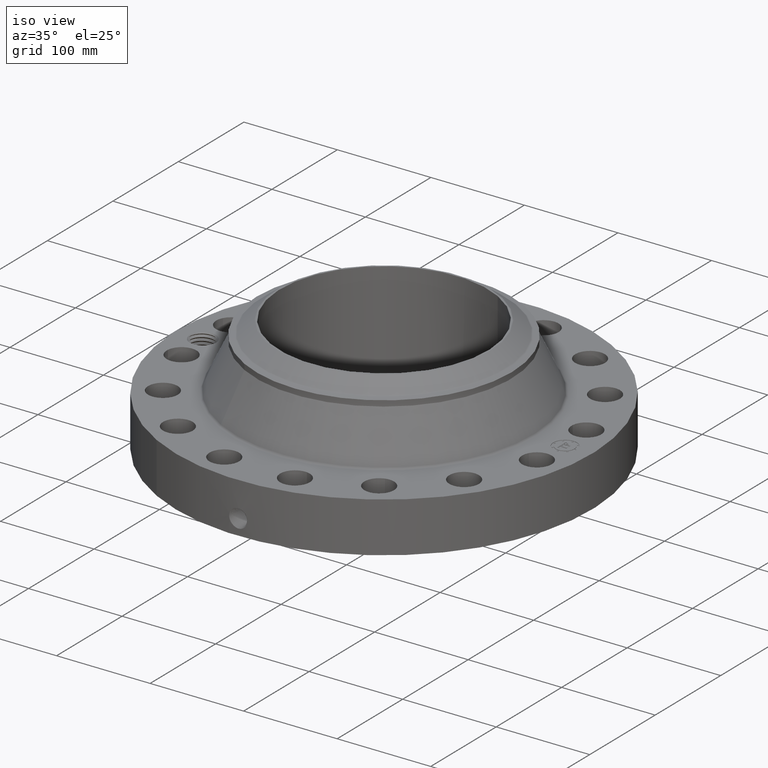
[diagram: clean part render]
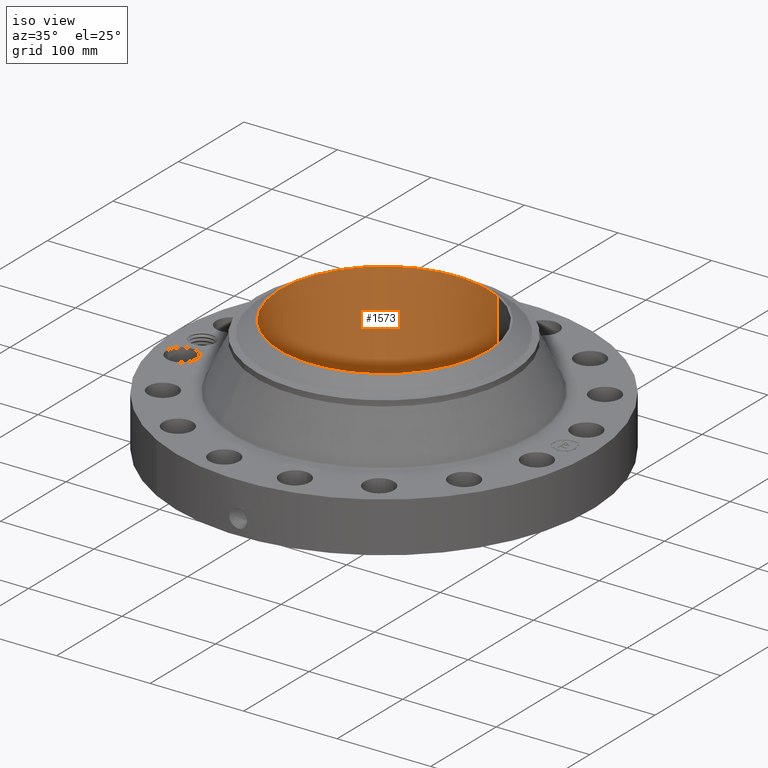
[diagram: same view with one face highlighted and labeled with its STEP entity id]
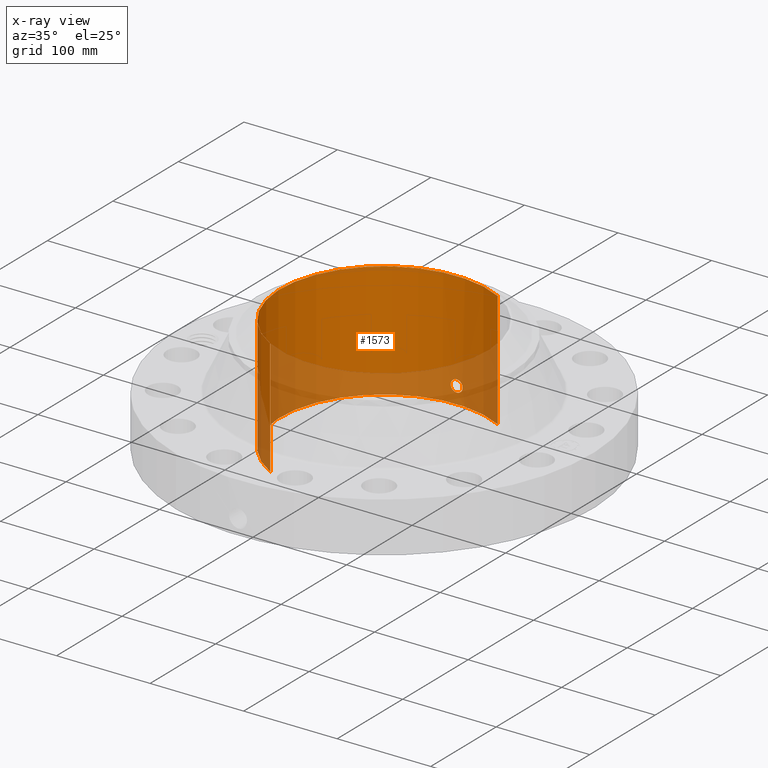
[diagram: x-ray of the same camera — body ghosted, the highlighted face saturated]
A machine part, iso view. The second image highlights one B-rep face of the part: STEP entity #1573.
The next image is the same camera in x-ray: the body ghosted, the highlighted face saturated — about 30% of this face is hidden behind the body in this view.
In plain terms, the highlighted cylindrical surface (partial cylindrical patch) has radius 111.125 mm, axis along (0, 0, -1).
Its self-contained STEP definition (entity closure, byte-faithful):
#259=AXIS2_PLACEMENT_3D('Circle Axis2P3D',#257,#258,$) ;
#1450=AXIS2_PLACEMENT_3D('Cylinder Axis2P3D',#1447,#1448,#1449) ;
#1522=AXIS2_PLACEMENT_3D('Circle Axis2P3D',#1520,#1521,$) ;
#252=CARTESIAN_POINT('Vertex',(2.0974867314,3.83942370829,0.250000000001)) ;
#254=CARTESIAN_POINT('Vertex',(-2.0974867314,-3.83942370829,0.250000000001)) ;
#257=CARTESIAN_POINT('Axis2P3D Location',(0.,0.,0.250000000001)) ;
#1447=CARTESIAN_POINT('Axis2P3D Location',(0.,0.,2.69000000001)) ;
#1456=CARTESIAN_POINT('Vertex',(2.0974867314,3.83942370829,5.13000000002)) ;
#1458=CARTESIAN_POINT('Vertex',(-2.0974867314,-3.83942370829,5.13000000002)) ;
#1461=CARTESIAN_POINT('Line Origine',(2.0974867314,3.83942370829,2.69000000001)) ;
#1466=CARTESIAN_POINT('Line Origine',(-2.0974867314,-3.83942370829,2.69000000001)) ;
#1520=CARTESIAN_POINT('Axis2P3D Location',(0.,0.,5.13000000002)) ;
#1532=CARTESIAN_POINT('Control Point',(0.219395640473,4.3694954575,1.05985638466)) ;
#1533=CARTESIAN_POINT('Control Point',(0.206921825529,4.37012177709,1.08268954975)) ;
#1534=CARTESIAN_POINT('Control Point',(0.191478829918,4.37085255723,1.1038977572)) ;
#1535=CARTESIAN_POINT('Control Point',(0.173346694115,4.3716313096,1.12296857946)) ;
#1536=CARTESIAN_POINT('Control Point',(0.112147067874,4.3738833864,1.17244170234)) ;
#1537=CARTESIAN_POINT('Control Point',(0.0350000945348,4.37534654876,1.19596923858)) ;
#1538=CARTESIAN_POINT('Control Point',(-0.0195410405234,4.37545612446,1.19761227709)) ;
#1539=CARTESIAN_POINT('Control Point',(-0.124120681131,4.37384641052,1.17247985079)) ;
#1540=CARTESIAN_POINT('Control Point',(-0.203162153444,4.37051308474,1.09959083296)) ;
#1541=CARTESIAN_POINT('Control Point',(-0.232145156541,4.36887123256,1.05338868477)) ;
#1542=CARTESIAN_POINT('Control Point',(-0.25582951994,4.36751853964,0.975227532471)) ;
#1543=CARTESIAN_POINT('Control Point',(-0.2483022235,4.36794807788,0.89582664895)) ;
#1544=CARTESIAN_POINT('Control Point',(-0.242067984362,4.36830910102,0.869232995501)) ;
#1545=CARTESIAN_POINT('Control Point',(-0.232327425784,4.36884614287,0.843815089582)) ;
#1546=CARTESIAN_POINT('Control Point',(-0.219395640473,4.3694954575,0.820143615352)) ;
#1547=CARTESIAN_POINT('Vertex',(0.219395640473,4.3694954575,1.05985638466)) ;
#1549=CARTESIAN_POINT('Vertex',(-0.219395640473,4.3694954575,0.820143615352)) ;
#1553=CARTESIAN_POINT('Control Point',(-0.219395640473,4.3694954575,0.820143615352)) ;
#1554=CARTESIAN_POINT('Control Point',(-0.206921825535,4.37012177709,0.797310450264)) ;
#1555=CARTESIAN_POINT('Control Point',(-0.191478829931,4.37085255723,0.776102242831)) ;
#1556=CARTESIAN_POINT('Control Point',(-0.173346694095,4.3716313096,0.757031420532)) ;
#1557=CARTESIAN_POINT('Control Point',(-0.112147067864,4.3738833864,0.707558297669)) ;
#1558=CARTESIAN_POINT('Control Point',(-0.0350000945393,4.37534654876,0.684030761431)) ;
#1559=CARTESIAN_POINT('Control Point',(0.0195410405327,4.37545612446,0.682387722917)) ;
#1560=CARTESIAN_POINT('Control Point',(0.124120681136,4.37384641052,0.707520149219)) ;
#1561=CARTESIAN_POINT('Control Point',(0.203162153446,4.37051308474,0.78040916705)) ;
#1562=CARTESIAN_POINT('Control Point',(0.232145156542,4.36887123256,0.826611315239)) ;
#1563=CARTESIAN_POINT('Control Point',(0.255829519929,4.36751853964,0.904772467501)) ;
#1564=CARTESIAN_POINT('Control Point',(0.248302223507,4.36794807787,0.984173350983)) ;
#1565=CARTESIAN_POINT('Control Point',(0.242067984334,4.36830910102,1.01076700458)) ;
#1566=CARTESIAN_POINT('Control Point',(0.232327425765,4.36884614287,1.03618491046)) ;
#1567=CARTESIAN_POINT('Control Point',(0.219395640473,4.3694954575,1.05985638466)) ;
#258=DIRECTION('Axis2P3D Direction',(0.,0.,-0.0393700787402)) ;
#1448=DIRECTION('Axis2P3D Direction',(0.,0.,-0.0393700787402)) ;
#1449=DIRECTION('Axis2P3D XDirection',(-0.0188750212049,-0.0345504945626,0.)) ;
#1462=DIRECTION('Vector Direction',(0.,0.,-0.0393700787402)) ;
#1467=DIRECTION('Vector Direction',(0.,0.,-0.0393700787402)) ;
#1521=DIRECTION('Axis2P3D Direction',(0.,0.,-0.0393700787402)) ;
#1463=VECTOR('Line Direction',#1462,0.0393700787402) ;
#1468=VECTOR('Line Direction',#1467,0.0393700787402) ;
#1526=ORIENTED_EDGE('',*,*,#1524,.F.) ;
#1527=ORIENTED_EDGE('',*,*,#1470,.T.) ;
#1528=ORIENTED_EDGE('',*,*,#261,.T.) ;
#1529=ORIENTED_EDGE('',*,*,#1465,.F.) ;
#1570=ORIENTED_EDGE('',*,*,#1551,.F.) ;
#1571=ORIENTED_EDGE('',*,*,#1568,.F.) ;
#1572=FACE_BOUND('',#1569,.T.) ;
#1573=ADVANCED_FACE('PartBody',(#1530,#1572),#1451,.F.) ;
#1531=B_SPLINE_CURVE_WITH_KNOTS('',5,(#1532,#1533,#1534,#1535,#1536,#1537,#1538,#1539,#1540,#1541,#1542,#1543,#1544,#1545,#1546),.UNSPECIFIED.,.F.,.U.,(6,3,3,3,6),(0.,4.67436526379,14.0217474011,23.3717136018,28.2176960317),.UNSPECIFIED.) ;
#1552=B_SPLINE_CURVE_WITH_KNOTS('',5,(#1553,#1554,#1555,#1556,#1557,#1558,#1559,#1560,#1561,#1562,#1563,#1564,#1565,#1566,#1567),.UNSPECIFIED.,.F.,.U.,(6,3,3,3,6),(0.,4.67436526176,14.0217473984,23.3717135992,28.2176960222),.UNSPECIFIED.) ;
#260=CIRCLE('generated circle',#259,4.37500000002) ;
#1523=CIRCLE('generated circle',#1522,4.37500000002) ;
#1451=CYLINDRICAL_SURFACE('generated cylinder',#1450,4.37500000002) ;
#261=EDGE_CURVE('',#255,#253,#260,.T.) ;
#1465=EDGE_CURVE('',#1457,#253,#1464,.T.) ;
#1470=EDGE_CURVE('',#1459,#255,#1469,.T.) ;
#1524=EDGE_CURVE('',#1459,#1457,#1523,.T.) ;
#1551=EDGE_CURVE('',#1548,#1550,#1531,.T.) ;
#1568=EDGE_CURVE('',#1550,#1548,#1552,.T.) ;
#1525=EDGE_LOOP('',(#1526,#1527,#1528,#1529)) ;
#1569=EDGE_LOOP('',(#1570,#1571)) ;
#1530=FACE_OUTER_BOUND('',#1525,.T.) ;
#1464=LINE('Line',#1461,#1463) ;
#1469=LINE('Line',#1466,#1468) ;
#253=VERTEX_POINT('',#252) ;
#255=VERTEX_POINT('',#254) ;
#1457=VERTEX_POINT('',#1456) ;
#1459=VERTEX_POINT('',#1458) ;
#1548=VERTEX_POINT('',#1547) ;
#1550=VERTEX_POINT('',#1549) ;